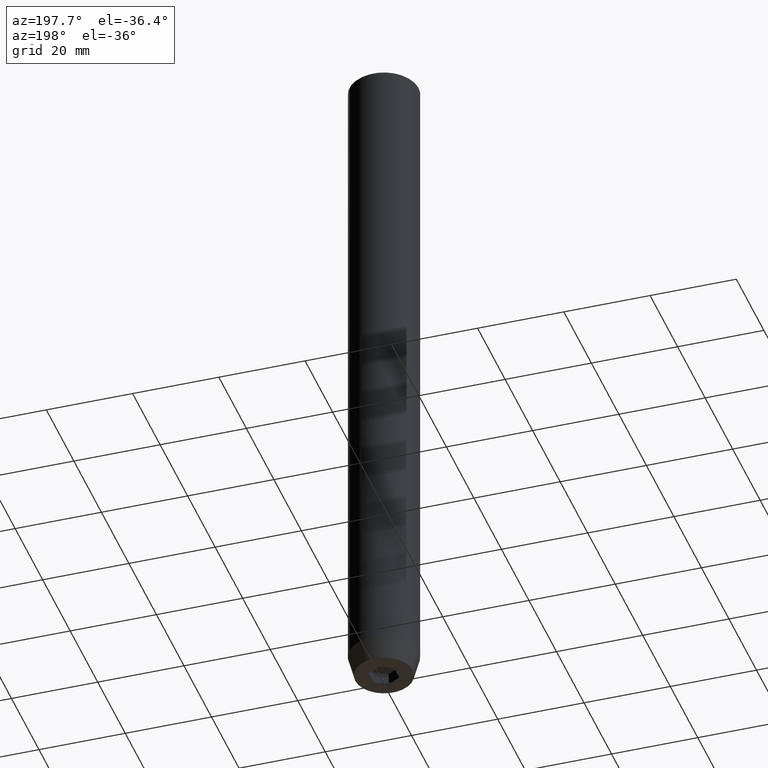
[diagram: clean part render]
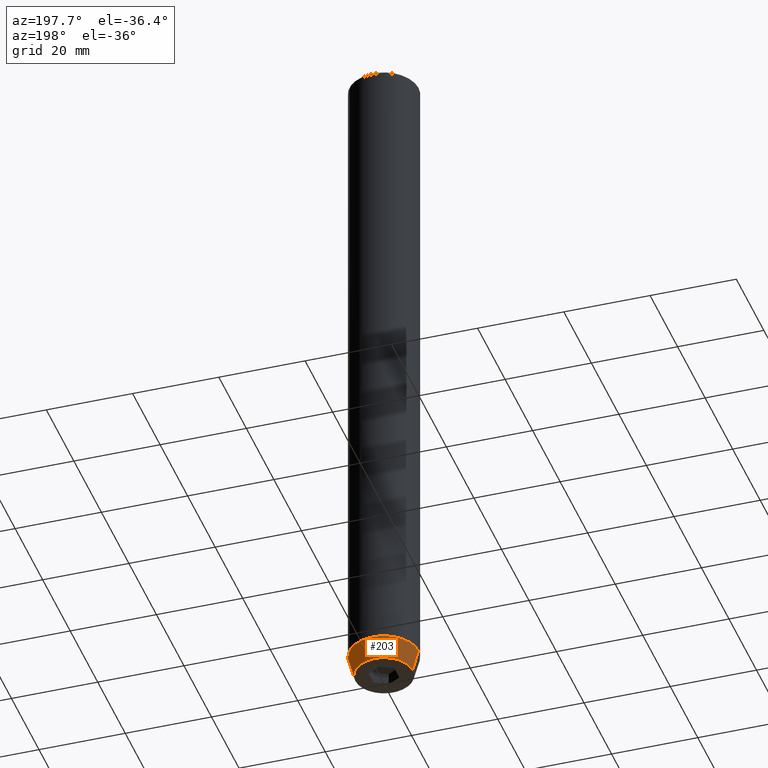
[diagram: same view with one face highlighted and labeled with its STEP entity id]
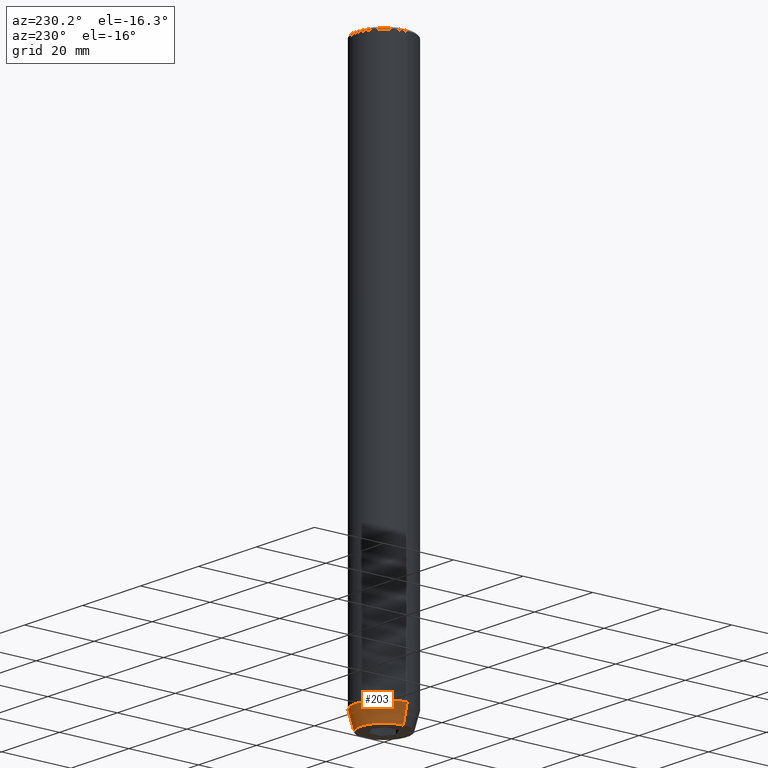
[diagram: same view with one face highlighted and labeled with its STEP entity id]
A machine part, auxiliary view. The second image highlights one B-rep face of the part: STEP entity #203.
A second angle (auxiliary view) of the same face is appended — the face is thin or edge-on in the first view.
In plain terms, the highlighted conical surface has half-angle 15 deg.
Its self-contained STEP definition (entity closure, byte-faithful):
#3 = CARTESIAN_POINT ( 'NONE',  ( -8.000000000000000000, 9.797174393178825657E-16, -154.9999999999999716 ) ) ;
#27 = DIRECTION ( 'NONE',  ( -0.000000000000000000, -0.000000000000000000, 1.000000000000000000 ) ) ;
#30 = ORIENTED_EDGE ( 'NONE', *, *, #390, .F. ) ;
#34 = DIRECTION ( 'NONE',  ( 0.2588190451025212391, 0.000000000000000000, 0.9659258262890680902 ) ) ;
#40 = DIRECTION ( 'NONE',  ( -0.2588190451025212391, 3.169619151431771721E-17, 0.9659258262890680902 ) ) ;
#42 = VERTEX_POINT ( 'NONE', #139 ) ;
#58 = DIRECTION ( 'NONE',  ( -0.000000000000000000, -0.000000000000000000, 1.000000000000000000 ) ) ;
#59 = EDGE_CURVE ( 'NONE', #117, #42, #265, .T. ) ;
#61 = ORIENTED_EDGE ( 'NONE', *, *, #315, .F. ) ;
#69 = DIRECTION ( 'NONE',  ( -0.000000000000000000, -0.000000000000000000, 1.000000000000000000 ) ) ;
#77 = DIRECTION ( 'NONE',  ( 1.000000000000000000, 0.000000000000000000, 0.000000000000000000 ) ) ;
#102 = VECTOR ( 'NONE', #40, 1000.000000000000114 ) ;
#106 = CARTESIAN_POINT ( 'NONE',  ( -6.660254037844374864, 8.976816591066587293E-16, -160.0000000000000000 ) ) ;
#108 = VERTEX_POINT ( 'NONE', #134 ) ;
#112 = CARTESIAN_POINT ( 'NONE',  ( 0.000000000000000000, 0.000000000000000000, -154.9999999999999716 ) ) ;
#117 = VERTEX_POINT ( 'NONE', #106 ) ;
#134 = CARTESIAN_POINT ( 'NONE',  ( 8.000000000000000000, 0.000000000000000000, -154.9999999999999716 ) ) ;
#139 = CARTESIAN_POINT ( 'NONE',  ( -8.000000000000000000, 9.797174393178825657E-16, -154.9999999999999716 ) ) ;
#152 = EDGE_LOOP ( 'NONE', ( #247, #367, #30, #61 ) ) ;
#153 = DIRECTION ( 'NONE',  ( 1.000000000000000000, 0.000000000000000000, 0.000000000000000000 ) ) ;
#168 = AXIS2_PLACEMENT_3D ( 'NONE', #112, #58, #366 ) ;
#187 = VECTOR ( 'NONE', #34, 1000.000000000000114 ) ;
#201 = AXIS2_PLACEMENT_3D ( 'NONE', #423, #27, #77 ) ;
#203 = ADVANCED_FACE ( 'NONE', ( #420 ), #380, .T. ) ;
#212 = CARTESIAN_POINT ( 'NONE',  ( 6.660254037844374864, 0.000000000000000000, -160.0000000000000000 ) ) ;
#226 = EDGE_CURVE ( 'NONE', #521, #117, #442, .T. ) ;
#247 = ORIENTED_EDGE ( 'NONE', *, *, #226, .T. ) ;
#261 = AXIS2_PLACEMENT_3D ( 'NONE', #281, #69, #153 ) ;
#265 = LINE ( 'NONE', #3, #102 ) ;
#281 = CARTESIAN_POINT ( 'NONE',  ( 0.000000000000000000, 0.000000000000000000, -160.0000000000000000 ) ) ;
#282 = CIRCLE ( 'NONE', #201, 8.000000000000000000 ) ;
#315 = EDGE_CURVE ( 'NONE', #521, #108, #381, .T. ) ;
#366 = DIRECTION ( 'NONE',  ( 1.000000000000000000, 0.000000000000000000, 0.000000000000000000 ) ) ;
#367 = ORIENTED_EDGE ( 'NONE', *, *, #59, .T. ) ;
#380 = CONICAL_SURFACE ( 'NONE', #168, 8.000000000000000000, 0.2617993877991499629 ) ;
#381 = LINE ( 'NONE', #386, #187 ) ;
#386 = CARTESIAN_POINT ( 'NONE',  ( 8.000000000000000000, 0.000000000000000000, -154.9999999999999716 ) ) ;
#390 = EDGE_CURVE ( 'NONE', #108, #42, #282, .T. ) ;
#420 = FACE_OUTER_BOUND ( 'NONE', #152, .T. ) ;
#423 = CARTESIAN_POINT ( 'NONE',  ( 0.000000000000000000, 0.000000000000000000, -154.9999999999999716 ) ) ;
#442 = CIRCLE ( 'NONE', #261, 6.660254037844374864 ) ;
#521 = VERTEX_POINT ( 'NONE', #212 ) ;